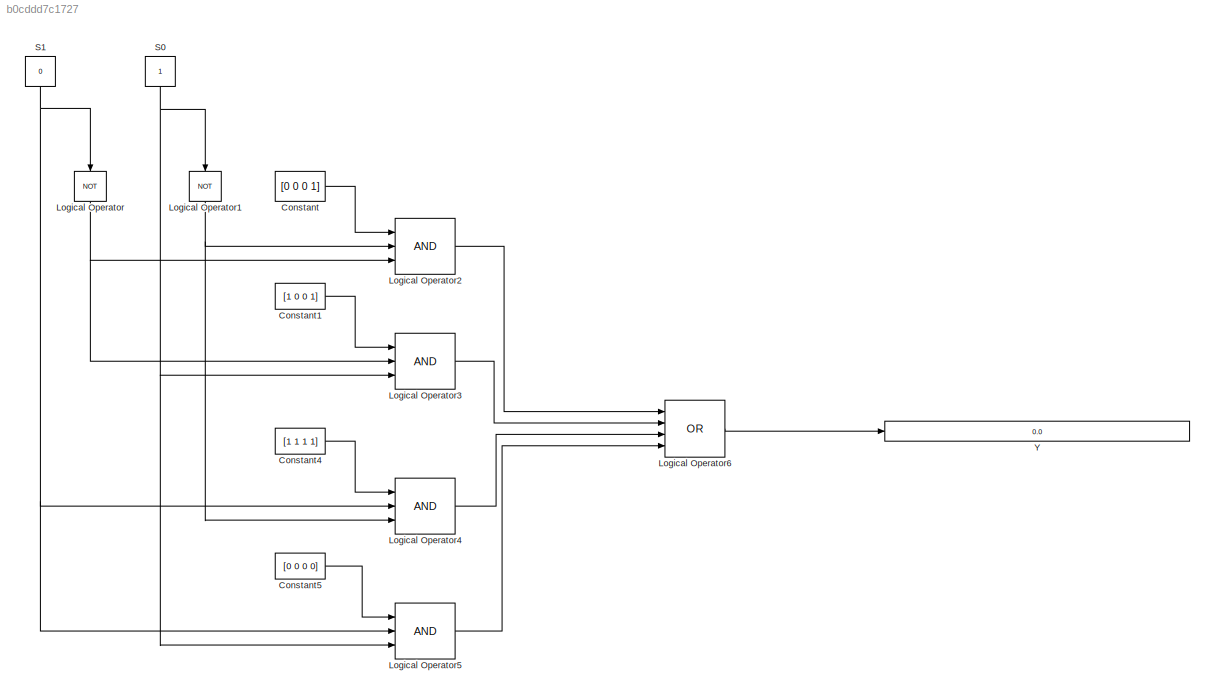
MODEL slx_b0cddd7c1727
KIND model
CONFIG AbsTol = auto
CONFIG EnableMultiTasking = off
CONFIG FixedStep = auto
CONFIG MaxStep = auto
CONFIG MinStep = auto
CONFIG RelTol = 1e-3
CONFIG SampleTimeConstraint = Unconstrained
CONFIG SolverName = VariableStepAuto
CONFIG StartTime = 0.0
CONFIG StopTime = 10.0
BLOCK [Constant] Constant
  Value = [0 0 0 1]
BLOCK [Constant] Constant1
  Value = [1 0 0 1]
BLOCK [Constant] Constant4
  Value = [1 1 1 1]
BLOCK [Constant] Constant5
  Value = [0 0 0 0]
BLOCK [Logic] Logical Operator
  AllPortsSameDT = off
  NameLocation = left
  Operator = NOT
  OutDataTypeStr = boolean
  Ports = [1, 1]
BLOCK [Logic] Logical Operator1
  AllPortsSameDT = off
  NameLocation = left
  Operator = NOT
  OutDataTypeStr = boolean
  Ports = [1, 1]
BLOCK [Logic] Logical Operator2
  AllPortsSameDT = off
  Inputs = 3
  OutDataTypeStr = boolean
  Ports = [3, 1]
BLOCK [Logic] Logical Operator3
  AllPortsSameDT = off
  Inputs = 3
  OutDataTypeStr = boolean
  Ports = [3, 1]
BLOCK [Logic] Logical Operator4
  AllPortsSameDT = off
  Inputs = 3
  OutDataTypeStr = boolean
  Ports = [3, 1]
BLOCK [Logic] Logical Operator5
  AllPortsSameDT = off
  Inputs = 3
  OutDataTypeStr = boolean
  Ports = [3, 1]
BLOCK [Logic] Logical Operator6
  AllPortsSameDT = off
  Inputs = 4
  Operator = OR
  OutDataTypeStr = boolean
  Ports = [4, 1]
BLOCK [Constant] S0
  NameLocation = top
BLOCK [Constant] S1
  NameLocation = top
  Value = 0
BLOCK [Display] Y
  Decimation = 1
  Ports = [1]
LINE Constant1:1 -> Logical Operator3:1
LINE Constant4:1 -> Logical Operator4:1
LINE Constant5:1 -> Logical Operator5:1
LINE Constant:1 -> Logical Operator2:1
NET Logical Operator1:1 -> Logical Operator2:2, Logical Operator4:3
LINE Logical Operator2:1 -> Logical Operator6:1
LINE Logical Operator3:1 -> Logical Operator6:2
LINE Logical Operator4:1 -> Logical Operator6:3
LINE Logical Operator5:1 -> Logical Operator6:4
LINE Logical Operator6:1 -> Y:1
NET Logical Operator:1 -> Logical Operator2:3, Logical Operator3:2
NET S0:1 -> Logical Operator1:1, Logical Operator3:3, Logical Operator5:3
NET S1:1 -> Logical Operator4:2, Logical Operator5:2, Logical Operator:1
note: NET lines group one-source signal fan-out (src -> all destinations, sorted); 1:1 wires keep LINE
